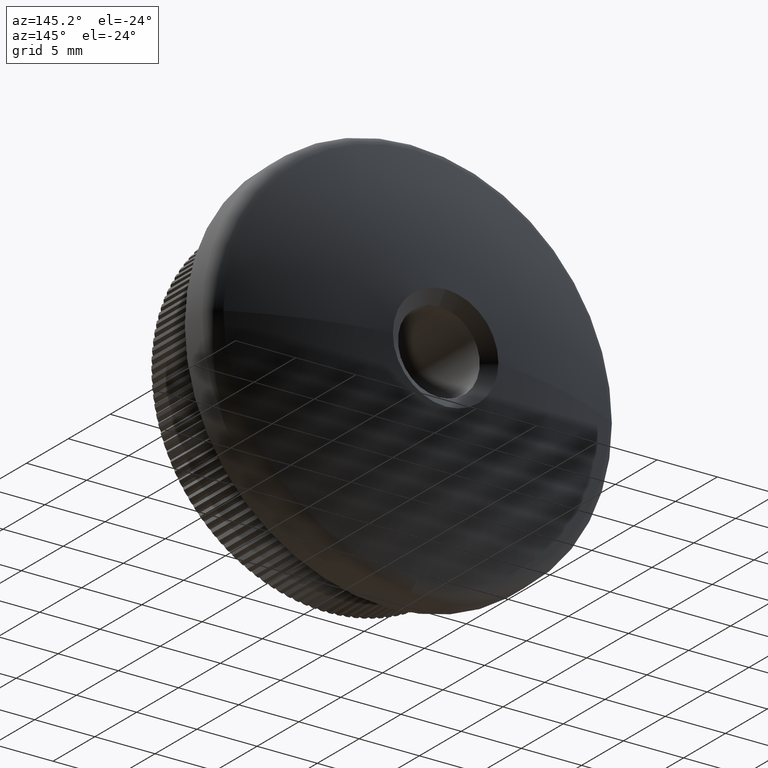
[diagram: clean part render]
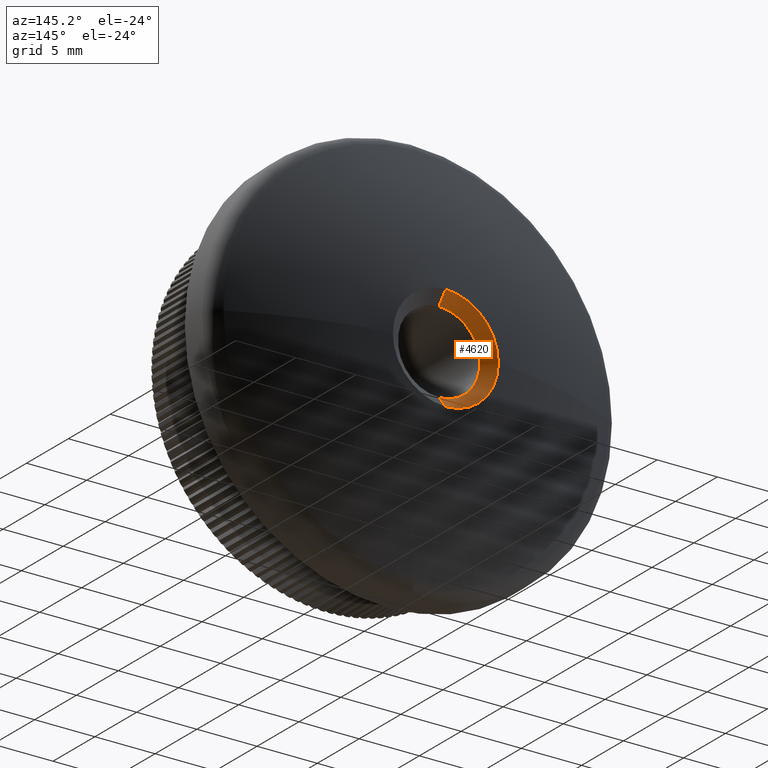
[diagram: same view with one face highlighted and labeled with its STEP entity id]
A machine part, auxiliary view. The second image highlights one B-rep face of the part: STEP entity #4620.
In plain terms, the highlighted conical surface has half-angle 50.434 deg.
Its self-contained STEP definition (entity closure, byte-faithful):
#1249 = CARTESIAN_POINT ( 'NONE',  ( 0.0000000000000000000, 13.92138306863526700, 0.0000000000000000000 ) ) ;
#1343 = DIRECTION ( 'NONE',  ( 0.0000000000000000000, 1.000000000000000000, 0.0000000000000000000 ) ) ;
#1677 = AXIS2_PLACEMENT_3D ( 'NONE', #10121, #12184, #16235 ) ;
#2202 = EDGE_CURVE ( 'NONE', #11349, #19418, #19628, .T. ) ;
#2995 = ORIENTED_EDGE ( 'NONE', *, *, #3345, .F. ) ;
#3083 = DIRECTION ( 'NONE',  ( 0.0000000000000000000, 1.000000000000000000, 0.0000000000000000000 ) ) ;
#3345 = EDGE_CURVE ( 'NONE', #5136, #21993, #7716, .T. ) ;
#3642 = ORIENTED_EDGE ( 'NONE', *, *, #9158, .F. ) ;
#4177 = AXIS2_PLACEMENT_3D ( 'NONE', #20072, #20162, #14253 ) ;
#4620 = ADVANCED_FACE ( 'NONE', ( #15058 ), #20177, .F. ) ;
#5136 = VERTEX_POINT ( 'NONE', #22772 ) ;
#5903 = EDGE_CURVE ( 'NONE', #21993, #9629, #16305, .T. ) ;
#7058 = CARTESIAN_POINT ( 'NONE',  ( 5.364843771854096600E-016, 14.73171883667769000, -4.380727386532436500 ) ) ;
#7716 = CIRCLE ( 'NONE', #22828, 3.399999999999995500 ) ;
#8025 = ORIENTED_EDGE ( 'NONE', *, *, #2202, .F. ) ;
#8255 = ORIENTED_EDGE ( 'NONE', *, *, #25523, .T. ) ;
#9138 = ORIENTED_EDGE ( 'NONE', *, *, #5903, .F. ) ;
#9158 = EDGE_CURVE ( 'NONE', #9629, #11349, #20129, .T. ) ;
#9629 = VERTEX_POINT ( 'NONE', #25932 ) ;
#9920 = DIRECTION ( 'NONE',  ( 0.0000000000000000000, 0.0000000000000000000, 1.000000000000000000 ) ) ;
#10121 = CARTESIAN_POINT ( 'NONE',  ( 0.0000000000000000000, 14.73171883667769000, 0.0000000000000000000 ) ) ;
#11349 = VERTEX_POINT ( 'NONE', #21685 ) ;
#12184 = DIRECTION ( 'NONE',  ( -0.0000000000000000000, -1.000000000000000000, -0.0000000000000000000 ) ) ;
#13089 = DIRECTION ( 'NONE',  ( 9.440756418166621300E-017, 0.6369607135539128200, -0.7708962637014725700 ) ) ;
#13827 = DIRECTION ( 'NONE',  ( 0.0000000000000000000, 0.6369607135539128200, 0.7708962637014725700 ) ) ;
#14253 = DIRECTION ( 'NONE',  ( 0.0000000000000000000, 0.0000000000000000000, -1.000000000000000000 ) ) ;
#15058 = FACE_OUTER_BOUND ( 'NONE', #24944, .T. ) ;
#15248 = CARTESIAN_POINT ( 'NONE',  ( 4.163799117100994600E-016, 13.92138306863526700, -3.399999999999995500 ) ) ;
#16235 = DIRECTION ( 'NONE',  ( 0.0000000000000000000, 0.0000000000000000000, -1.000000000000000000 ) ) ;
#16305 = LINE ( 'NONE', #19755, #23329 ) ;
#17207 = AXIS2_PLACEMENT_3D ( 'NONE', #1249, #1343, #9920 ) ;
#17655 = CARTESIAN_POINT ( 'NONE',  ( 4.163799117100995600E-016, 13.92138306863526700, 3.399999999999995500 ) ) ;
#17915 = LINE ( 'NONE', #15248, #20764 ) ;
#19418 = VERTEX_POINT ( 'NONE', #7058 ) ;
#19628 = CIRCLE ( 'NONE', #1677, 4.380727386532452500 ) ;
#19755 = CARTESIAN_POINT ( 'NONE',  ( 0.0000000000000000000, 13.92138306863526700, 3.399999999999995500 ) ) ;
#20072 = CARTESIAN_POINT ( 'NONE',  ( 0.0000000000000000000, 14.73171883667769000, 0.0000000000000000000 ) ) ;
#20129 = CIRCLE ( 'NONE', #4177, 4.380727386532452500 ) ;
#20162 = DIRECTION ( 'NONE',  ( -0.0000000000000000000, -1.000000000000000000, -0.0000000000000000000 ) ) ;
#20177 = CONICAL_SURFACE ( 'NONE', #17207, 3.399999999999995500, 0.8802470502110862900 ) ;
#20764 = VECTOR ( 'NONE', #13089, 999.9999999999998900 ) ;
#21390 = CARTESIAN_POINT ( 'NONE',  ( 0.0000000000000000000, 13.92138306863526700, 0.0000000000000000000 ) ) ;
#21685 = CARTESIAN_POINT ( 'NONE',  ( -4.380727386532452500, 14.73171883667769000, 1.249142979897262600E-015 ) ) ;
#21993 = VERTEX_POINT ( 'NONE', #17655 ) ;
#22772 = CARTESIAN_POINT ( 'NONE',  ( 0.0000000000000000000, 13.92138306863526700, -3.399999999999995500 ) ) ;
#22828 = AXIS2_PLACEMENT_3D ( 'NONE', #21390, #3083, #23421 ) ;
#23329 = VECTOR ( 'NONE', #13827, 999.9999999999998900 ) ;
#23421 = DIRECTION ( 'NONE',  ( 0.0000000000000000000, 0.0000000000000000000, 1.000000000000000000 ) ) ;
#24944 = EDGE_LOOP ( 'NONE', ( #2995, #8255, #8025, #3642, #9138 ) ) ;
#25523 = EDGE_CURVE ( 'NONE', #5136, #19418, #17915, .T. ) ;
#25932 = CARTESIAN_POINT ( 'NONE',  ( 0.0000000000000000000, 14.73171883667769000, 4.380727386532436500 ) ) ;